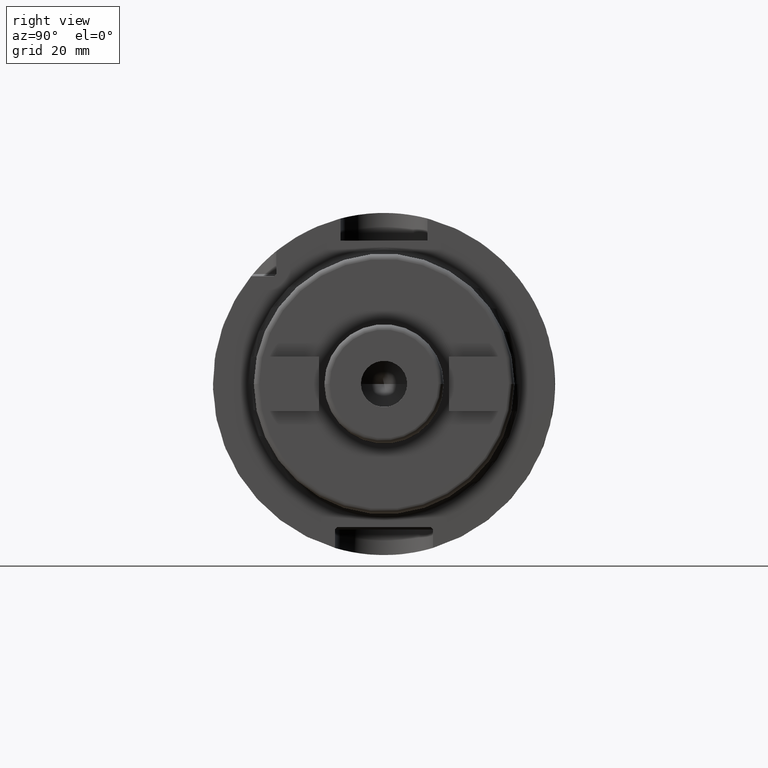
[diagram: clean part render]
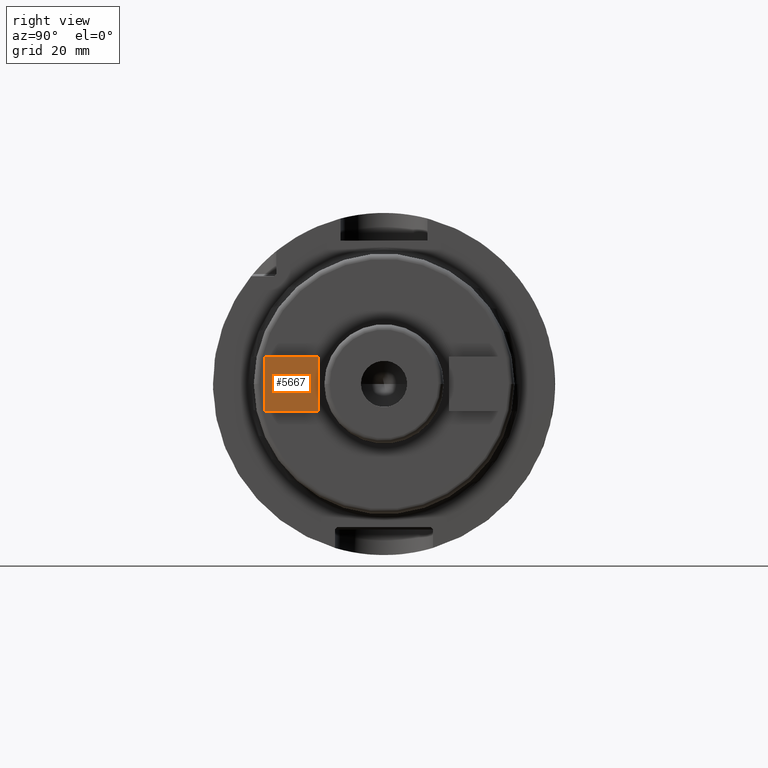
[diagram: same view with one face highlighted and labeled with its STEP entity id]
A machine part, right view. The second image highlights one B-rep face of the part: STEP entity #5667.
In plain terms, the highlighted planar face has unit normal (1, 0, 0).
Its self-contained STEP definition (entity closure, byte-faithful):
#2162=DIRECTION('',(0.E0,-1.E0,0.E0));
#2163=VECTOR('',#2162,1.E1);
#2164=CARTESIAN_POINT('',(5.56E1,-1.2E1,5.E0));
#2165=LINE('',#2164,#2163);
#2166=DIRECTION('',(0.E0,0.E0,1.E0));
#2167=VECTOR('',#2166,1.E1);
#2168=CARTESIAN_POINT('',(5.56E1,-1.2E1,-5.E0));
#2169=LINE('',#2168,#2167);
#2170=DIRECTION('',(0.E0,1.E0,0.E0));
#2171=VECTOR('',#2170,1.E1);
#2172=CARTESIAN_POINT('',(5.56E1,-2.2E1,-5.E0));
#2173=LINE('',#2172,#2171);
#2174=DIRECTION('',(0.E0,0.E0,-1.E0));
#2175=VECTOR('',#2174,1.E1);
#2176=CARTESIAN_POINT('',(5.56E1,-2.2E1,5.E0));
#2177=LINE('',#2176,#2175);
#3226=CARTESIAN_POINT('',(5.56E1,-1.2E1,5.E0));
#3227=CARTESIAN_POINT('',(5.56E1,-2.2E1,5.E0));
#3228=VERTEX_POINT('',#3226);
#3229=VERTEX_POINT('',#3227);
#3230=CARTESIAN_POINT('',(5.56E1,-2.2E1,-5.E0));
#3231=VERTEX_POINT('',#3230);
#3232=CARTESIAN_POINT('',(5.56E1,-1.2E1,-5.E0));
#3233=VERTEX_POINT('',#3232);
#5652=CARTESIAN_POINT('',(5.56E1,0.E0,0.E0));
#5653=DIRECTION('',(1.E0,0.E0,0.E0));
#5654=DIRECTION('',(0.E0,0.E0,-1.E0));
#5655=AXIS2_PLACEMENT_3D('',#5652,#5653,#5654);
#5656=PLANE('',#5655);
#5658=ORIENTED_EDGE('',*,*,#5657,.F.);
#5660=ORIENTED_EDGE('',*,*,#5659,.F.);
#5662=ORIENTED_EDGE('',*,*,#5661,.F.);
#5664=ORIENTED_EDGE('',*,*,#5663,.F.);
#5665=EDGE_LOOP('',(#5658,#5660,#5662,#5664));
#5666=FACE_OUTER_BOUND('',#5665,.F.);
#5667=ADVANCED_FACE('',(#5666),#5656,.T.);
#5657=EDGE_CURVE('',#3228,#3229,#2165,.T.);
#5659=EDGE_CURVE('',#3233,#3228,#2169,.T.);
#5661=EDGE_CURVE('',#3231,#3233,#2173,.T.);
#5663=EDGE_CURVE('',#3229,#3231,#2177,.T.);